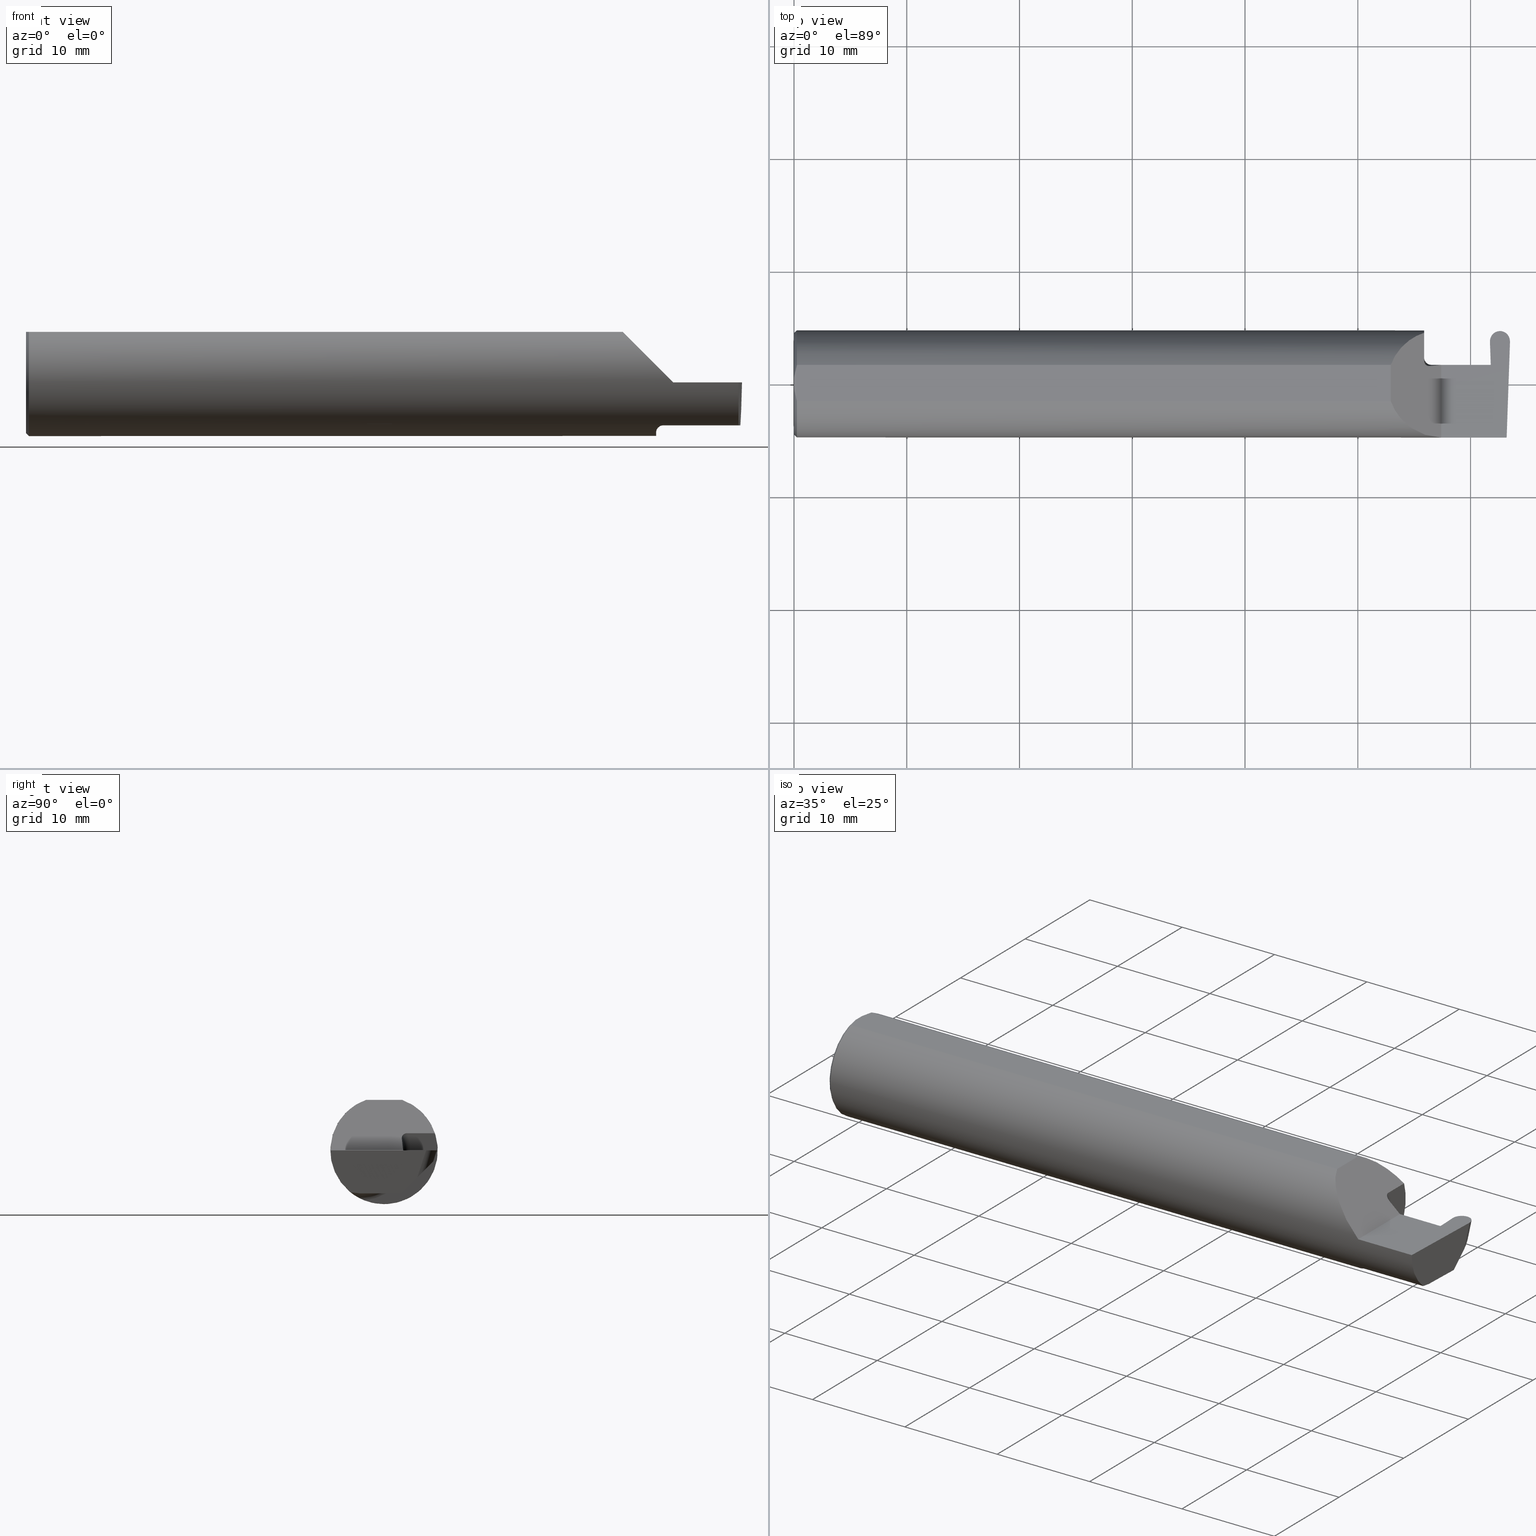
[diagram: canonical four-view strip — front | top / right | iso, engineering-drawing reading convention]
A machine part, canonical four-view strip (front | top / right | iso — engineering-drawing reading convention). The complete STEP part file that produces these views, byte-faithful:
ISO-10303-21;
HEADER;
FILE_DESCRIPTION (( 'STEP AP203' ),
    '1' );
FILE_NAME ('222170-GFR069-4.STEP',
    '2024-06-26T22:33:09',
    ( '' ),
    ( '' ),
    'SwSTEP 2.0',
    'SolidWorks 2024',
    '' );
FILE_SCHEMA (( 'CONFIG_CONTROL_DESIGN' ));
ENDSEC;

DATA;
#1 = AXIS2_PLACEMENT_3D ( 'NONE', #185, #61, #291 ) ;
#2 = CARTESIAN_POINT ( 'NONE',  ( 2.200000000000000178, 0.08104282222773613598, 0.05999999999999955369 ) ) ;
#3 = EDGE_LOOP ( 'NONE', ( #206, #472, #368, #521, #239, #60, #145, #120, #281, #515, #617 ) ) ;
#4 = EDGE_CURVE ( 'NONE', #346, #703, #574, .T. ) ;
#5 = CARTESIAN_POINT ( 'NONE',  ( 2.200000000000000178, 0.1774824568795465018, 0.05999999999999960920 ) ) ;
#6 = ORIENTED_EDGE ( 'NONE', *, *, #237, .F. ) ;
#7 = CARTESIAN_POINT ( 'NONE',  ( 2.260000000000000231, -0.2500000000000000555, 2.939152317953647352E-17 ) ) ;
#8 = ORIENTED_EDGE ( 'NONE', *, *, #298, .T. ) ;
#9 = VECTOR ( 'NONE', #580, 39.37007874015748143 ) ;
#10 = EDGE_CURVE ( 'NONE', #300, #349, #492, .T. ) ;
#11 = CC_DESIGN_APPROVAL ( #555, ( #513 ) ) ;
#12 = FACE_OUTER_BOUND ( 'NONE', #36, .T. ) ;
#13 = CARTESIAN_POINT ( 'NONE',  ( 2.432814406597916257, 0.06655862405284602989, -0.005234924505382013322 ) ) ;
#14 = ORIENTED_EDGE ( 'NONE', *, *, #322, .F. ) ;
#15 = CARTESIAN_POINT ( 'NONE',  ( 0.000000000000000000, 0.000000000000000000, 0.000000000000000000 ) ) ;
#16 = DIRECTION ( 'NONE',  ( -1.000000000000000000, -5.199944350551892858E-16, -0.000000000000000000 ) ) ;
#17 = CALENDAR_DATE ( 2024, 26, 6 ) ;
#18 = CIRCLE ( 'NONE', #522, 0.1773500000000005072 ) ;
#19 = CARTESIAN_POINT ( 'NONE',  ( 2.494284159956727809, 0.06030305154315080546, -0.1500000000000000500 ) ) ;
#20 = VECTOR ( 'NONE', #191, 39.37007874015748143 ) ;
#21 = PLANE ( 'NONE',  #363 ) ;
#22 = APPLICATION_CONTEXT ( 'configuration controlled 3d designs of mechanical parts and assemblies' ) ;
#23 = CARTESIAN_POINT ( 'NONE',  ( 2.219511795768554396, -0.1163687266324231750, -0.1468371510166791294 ) ) ;
#24 = LINE ( 'NONE', #193, #43 ) ;
#25 = PERSON_AND_ORGANIZATION ( #656, #149 ) ;
#26 = CYLINDRICAL_SURFACE ( 'NONE', #347, 0.1500000000000001055 ) ;
#27 = DIRECTION ( 'NONE',  ( 0.000000000000000000, -1.000000000000000000, 0.000000000000000000 ) ) ;
#28 = ORIENTED_EDGE ( 'NONE', *, *, #127, .F. ) ;
#29 = CARTESIAN_POINT ( 'NONE',  ( 2.432814406597916257, 0.06655862405284602989, -0.005234924505382013322 ) ) ;
#30 = ADVANCED_FACE ( 'NONE', ( #190 ), #179, .F. ) ;
#31 = DIRECTION ( 'NONE',  ( 0.000000000000000000, 0.000000000000000000, -1.000000000000000000 ) ) ;
#32 = VECTOR ( 'NONE', #312, 39.37007874015748143 ) ;
#33 = ORIENTED_EDGE ( 'NONE', *, *, #163, .F. ) ;
#34 = PLANE ( 'NONE',  #174 ) ;
#35 = CARTESIAN_POINT ( 'NONE',  ( 2.432629151099980458, 0.1162741585162867103, -0.09402889302686347206 ) ) ;
#36 = EDGE_LOOP ( 'NONE', ( #571, #546, #706 ) ) ;
#37 = CARTESIAN_POINT ( 'NONE',  ( 2.496725455933987536, 0.1069046986531339838, -0.1033983528900163373 ) ) ;
#38 = CARTESIAN_POINT ( 'NONE',  ( 2.200000000000000178, -0.08335000000000011844, 0.000000000000000000 ) ) ;
#39 = ORIENTED_EDGE ( 'NONE', *, *, #382, .T. ) ;
#40 = CARTESIAN_POINT ( 'NONE',  ( 2.200000000000000178, 0.06664999999999997315, 3.673940397442061963E-17 ) ) ;
#41 = DIRECTION ( 'NONE',  ( -0.02739170151060053848, -0.3089010440752014142, -0.9506996579664919178 ) ) ;
#42 = ORIENTED_EDGE ( 'NONE', *, *, #138, .F. ) ;
#43 = VECTOR ( 'NONE', #137, 39.37007874015748143 ) ;
#44 = EDGE_CURVE ( 'NONE', #621, #688, #457, .T. ) ;
#45 = APPROVAL_STATUS ( 'not_yet_approved' ) ;
#46 = CARTESIAN_POINT ( 'NONE',  ( 2.225000000000000089, -0.08335000000000010456, 0.000000000000000000 ) ) ;
#47 = EDGE_LOOP ( 'NONE', ( #390, #284, #155, #324, #42 ) ) ;
#48 = APPLICATION_PROTOCOL_DEFINITION ( 'international standard', 'config_control_design', 1994, #318 ) ;
#49 = CARTESIAN_POINT ( 'NONE',  ( 2.464880405396090435, 0.1481930249017474333, 0.001059347137392458284 ) ) ;
#50 = ORIENTED_EDGE ( 'NONE', *, *, #510, .F. ) ;
#51 = CALENDAR_DATE ( 2024, 26, 6 ) ;
#52 = EDGE_CURVE ( 'NONE', #688, #123, #177, .T. ) ;
#53 = CARTESIAN_POINT ( 'NONE',  ( 2.463396416271047329, 0.1305034395874042075, -0.05338359836401863900 ) ) ;
#54 = EDGE_LOOP ( 'NONE', ( #447, #691, #657, #39, #354 ) ) ;
#55 = CIRCLE ( 'NONE', #464, 0.1873499999999999888 ) ;
#56 = AXIS2_PLACEMENT_3D ( 'NONE', #537, #264, #482 ) ;
#57 = PERSON_AND_ORGANIZATION ( #656, #149 ) ;
#58 = DIRECTION ( 'NONE',  ( 0.000000000000000000, 1.000000000000000000, 0.000000000000000000 ) ) ;
#59 = ADVANCED_FACE ( 'NONE', ( #463 ), #578, .F. ) ;
#60 = ORIENTED_EDGE ( 'NONE', *, *, #163, .T. ) ;
#61 = DIRECTION ( 'NONE',  ( -1.000000000000000000, -5.199944350551892858E-16, -0.000000000000000000 ) ) ;
#62 = DIRECTION ( 'NONE',  ( 1.000000000000000000, 5.199944350551892858E-16, 0.000000000000000000 ) ) ;
#63 = ADVANCED_FACE ( 'NONE', ( #12 ), #403, .T. ) ;
#64 = PLANE ( 'NONE',  #222 ) ;
#65 = CARTESIAN_POINT ( 'NONE',  ( 2.200000000000000178, -0.2500000000000001110, 0.05999999999999938716 ) ) ;
#66 = PRODUCT ( '222170-GFR069-4', '222170-GFR069-4', '', ( #98 ) ) ;
#67 = EDGE_CURVE ( 'NONE', #366, #142, #518, .T. ) ;
#68 = CIRCLE ( 'NONE', #345, 0.1750000000000001277 ) ;
#69 = FACE_OUTER_BOUND ( 'NONE', #262, .T. ) ;
#70 = EDGE_LOOP ( 'NONE', ( #288, #28, #459, #215 ) ) ;
#71 = CARTESIAN_POINT ( 'NONE',  ( 0.005151108632379595466, -0.04888864921576189376, 0.1763499999999999235 ) ) ;
#72 = DIRECTION ( 'NONE',  ( -1.224646799147353947E-16, 0.000000000000000000, -1.000000000000000000 ) ) ;
#73 = PERSON_AND_ORGANIZATION_ROLE ( 'classification_officer' ) ;
#74 = LINE ( 'NONE', #508, #124 ) ;
#75 = VERTEX_POINT ( 'NONE', #672 ) ;
#76 = CARTESIAN_POINT ( 'NONE',  ( 2.248197494504676097, 0.06665000000000001479, 0.01180250549532442170 ) ) ;
#77 = CC_DESIGN_SECURITY_CLASSIFICATION ( #595, ( #513 ) ) ;
#78 = EDGE_CURVE ( 'NONE', #600, #218, #568, .T. ) ;
#79 = DATE_AND_TIME ( #413, #400 ) ;
#80 = CARTESIAN_POINT ( 'NONE',  ( 2.208439486659306006, -0.1064616213911155906, -0.1542305641651501857 ) ) ;
#81 = CARTESIAN_POINT ( 'NONE',  ( 2.499978631868781331, 0.1483485405823076198, 0.000000000000000000 ) ) ;
#82 = ORIENTED_EDGE ( 'NONE', *, *, #175, .T. ) ;
#83 =( BOUNDED_CURVE ( )  B_SPLINE_CURVE ( 3, ( #446, #556, #653, #5 ),
 .UNSPECIFIED., .F., .F. ) 
 B_SPLINE_CURVE_WITH_KNOTS ( ( 4, 4 ),
 ( 0.3443758272561143752, 1.244796402594305018 ),
 .UNSPECIFIED. ) 
 CURVE ( )  GEOMETRIC_REPRESENTATION_ITEM ( )  RATIONAL_B_SPLINE_CURVE ( ( 1.000000000000000000, 0.9335704097038357574, 0.9335704097038357574, 1.000000000000000000 ) ) 
 REPRESENTATION_ITEM ( '' )  );
#84 = CARTESIAN_POINT ( 'NONE',  ( 2.499925463505881851, 0.1468259978756916162, 0.000000000000000000 ) ) ;
#85 = CARTESIAN_POINT ( 'NONE',  ( 0.000000000000000000, 0.01880691362239451242, 0.1763499999999999235 ) ) ;
#86 = ORIENTED_EDGE ( 'NONE', *, *, #255, .T. ) ;
#87 = CC_DESIGN_PERSON_AND_ORGANIZATION_ASSIGNMENT ( #250, #245, ( #220 ) ) ;
#88 = CARTESIAN_POINT ( 'NONE',  ( 2.200000000000000178, -0.06851976604679038685, -0.1743704796142199753 ) ) ;
#89 = DIRECTION ( 'NONE',  ( 1.000000000000000000, 0.000000000000000000, 0.000000000000000000 ) ) ;
#90 = AXIS2_PLACEMENT_3D ( 'NONE', #15, #614, #125 ) ;
#91 = CONICAL_SURFACE ( 'NONE', #477, 0.1773500000000005072, 0.7853981633974551624 ) ;
#92 = VERTEX_POINT ( 'NONE', #186 ) ;
#93 = CARTESIAN_POINT ( 'NONE',  ( 2.222174967710398796, -0.1172600179964003730, -0.1461167706989305870 ) ) ;
#94 = DIRECTION ( 'NONE',  ( 0.01806679408117481400, 0.000000000000000000, -0.9998367821557817559 ) ) ;
#95 = ORIENTED_EDGE ( 'NONE', *, *, #517, .T. ) ;
#96 = CARTESIAN_POINT ( 'NONE',  ( 2.465246133078789814, 0.1846500000000000363, 0.000000000000000000 ) ) ;
#97 = ADVANCED_FACE ( 'NONE', ( #128 ), #21, .F. ) ;
#98 = MECHANICAL_CONTEXT ( 'NONE', #318, 'mechanical' ) ;
#99 = CARTESIAN_POINT ( 'NONE',  ( 2.733184360054362827, -0.08334999999999888332, -0.1500000000000000500 ) ) ;
#100 = EDGE_LOOP ( 'NONE', ( #14, #158, #139, #602 ) ) ;
#101 = VECTOR ( 'NONE', #625, 39.37007874015748143 ) ;
#102 = CC_DESIGN_PERSON_AND_ORGANIZATION_ASSIGNMENT ( #57, #115, ( #513 ) ) ;
#103 = CARTESIAN_POINT ( 'NONE',  ( 0.000000000000000000, 0.000000000000000000, 0.000000000000000000 ) ) ;
#104 = LINE ( 'NONE', #214, #570 ) ;
#105 = ORIENTED_EDGE ( 'NONE', *, *, #78, .T. ) ;
#106 = EDGE_CURVE ( 'NONE', #427, #613, #436, .T. ) ;
#107 = APPROVAL_ROLE ( '' ) ;
#108 = DIRECTION ( 'NONE',  ( 0.000000000000000000, 0.000000000000000000, 1.000000000000000000 ) ) ;
#109 = ORIENTED_EDGE ( 'NONE', *, *, #183, .F. ) ;
#110 = CARTESIAN_POINT ( 'NONE',  ( 2.488151344270815191, -0.1172600179964003869, -0.1461167706989304760 ) ) ;
#111 = ORIENTED_EDGE ( 'NONE', *, *, #414, .F. ) ;
#112 =( BOUNDED_CURVE ( )  B_SPLINE_CURVE ( 3, ( #619, #248, #514, #358 ),
 .UNSPECIFIED., .F., .F. ) 
 B_SPLINE_CURVE_WITH_KNOTS ( ( 4, 4 ),
 ( 4.712388980384688786, 5.938809479923471635 ),
 .UNSPECIFIED. ) 
 CURVE ( )  GEOMETRIC_REPRESENTATION_ITEM ( )  RATIONAL_B_SPLINE_CURVE ( ( 1.000000000000000000, 0.8785364999009659392, 0.8785364999009659392, 1.000000000000000000 ) ) 
 REPRESENTATION_ITEM ( '' )  );
#113 = AXIS2_PLACEMENT_3D ( 'NONE', #458, #612, #665 ) ;
#114 = AXIS2_PLACEMENT_3D ( 'NONE', #208, #216, #384 ) ;
#115 = PERSON_AND_ORGANIZATION_ROLE ( 'design_supplier' ) ;
#116 = CARTESIAN_POINT ( 'NONE',  ( 2.444348312931303724, 0.1715825785496946920, -0.03872047299345484500 ) ) ;
#117 = VERTEX_POINT ( 'NONE', #202 ) ;
#118 = CALENDAR_DATE ( 2024, 26, 6 ) ;
#119 = FACE_OUTER_BOUND ( 'NONE', #314, .T. ) ;
#120 = ORIENTED_EDGE ( 'NONE', *, *, #265, .F. ) ;
#121 = ADVANCED_FACE ( 'NONE', ( #471 ), #683, .F. ) ;
#122 = FACE_OUTER_BOUND ( 'NONE', #70, .T. ) ;
#123 = VERTEX_POINT ( 'NONE', #35 ) ;
#124 = VECTOR ( 'NONE', #659, 39.37007874015748143 ) ;
#125 = DIRECTION ( 'NONE',  ( 0.000000000000000000, 0.000000000000000000, -1.000000000000000000 ) ) ;
#126 = CARTESIAN_POINT ( 'NONE',  ( -3.937007874019685528E-05, 0.1723030515431495657, -0.03799999999999999906 ) ) ;
#127 = EDGE_CURVE ( 'NONE', #703, #503, #68, .T. ) ;
#128 = FACE_OUTER_BOUND ( 'NONE', #681, .T. ) ;
#129 = EDGE_CURVE ( 'NONE', #600, #92, #686, .T. ) ;
#130 = CARTESIAN_POINT ( 'NONE',  ( 2.225000000000000089, 0.06250952145814828165, 0.03500000000000007966 ) ) ;
#131 = CARTESIAN_POINT ( 'NONE',  ( 2.426364553045988082, 0.2358584246263381590, 0.02555537308318932624 ) ) ;
#132 = CC_DESIGN_PERSON_AND_ORGANIZATION_ASSIGNMENT ( #563, #73, ( #595 ) ) ;
#133 = CALENDAR_DATE ( 2024, 26, 6 ) ;
#134 =( BOUNDED_CURVE ( )  B_SPLINE_CURVE ( 3, ( #610, #396, #176, #13 ),
 .UNSPECIFIED., .F., .F. ) 
 B_SPLINE_CURVE_WITH_KNOTS ( ( 4, 4 ),
 ( 3.159045946109707792, 4.694935687864667528 ),
 .UNSPECIFIED. ) 
 CURVE ( )  GEOMETRIC_REPRESENTATION_ITEM ( )  RATIONAL_B_SPLINE_CURVE ( ( 1.000000000000000000, 0.8128932002257790446, 0.8128932002257790446, 1.000000000000000000 ) ) 
 REPRESENTATION_ITEM ( '' )  );
#135 = CIRCLE ( 'NONE', #195, 0.1873499999999999888 ) ;
#136 = LINE ( 'NONE', #309, #32 ) ;
#137 = DIRECTION ( 'NONE',  ( 1.000000000000000000, -0.000000000000000000, -0.000000000000000000 ) ) ;
#138 = EDGE_CURVE ( 'NONE', #334, #123, #485, .T. ) ;
#139 = ORIENTED_EDGE ( 'NONE', *, *, #192, .T. ) ;
#140 = CARTESIAN_POINT ( 'NONE',  ( 2.733184360054362827, -0.08334999999999888332, -0.1500000000000000500 ) ) ;
#141 = CARTESIAN_POINT ( 'NONE',  ( 0.000000000000000000, 0.000000000000000000, -0.1773500000000005072 ) ) ;
#142 = VERTEX_POINT ( 'NONE', #326 ) ;
#143 = CARTESIAN_POINT ( 'NONE',  ( 0.000000000000000000, 0.000000000000000000, 0.000000000000000000 ) ) ;
#144 = CARTESIAN_POINT ( 'NONE',  ( 2.485497127068696521, 0.1715825785496953304, -0.03872047299345427601 ) ) ;
#145 = ORIENTED_EDGE ( 'NONE', *, *, #465, .T. ) ;
#146 = LINE ( 'NONE', #37, #101 ) ;
#147 = CLOSED_SHELL ( 'NONE', ( #666, #230, #646, #408, #30, #455, #496, #550, #438, #63, #603, #343, #395, #59, #426, #97, #121, #270, #289 ) ) ;
#148 = CARTESIAN_POINT ( 'NONE',  ( 2.435723926987983567, -2.372237094640325061, -0.1236817301709687428 ) ) ;
#149 = ORGANIZATION ( 'UNSPECIFIED', 'UNSPECIFIED', '' ) ;
#150 = APPROVAL_PERSON_ORGANIZATION ( #519, #340, #451 ) ;
#151 = ORIENTED_EDGE ( 'NONE', *, *, #361, .F. ) ;
#152 = CARTESIAN_POINT ( 'NONE',  ( 2.429150766615653101, 0.1688532867831435691, 8.647869142229363777E-18 ) ) ;
#153 = EDGE_CURVE ( 'NONE', #660, #92, #680, .T. ) ;
#154 = CARTESIAN_POINT ( 'NONE',  ( 2.488255780514392335, -0.1873499999999999888, 0.000000000000000000 ) ) ;
#155 = ORIENTED_EDGE ( 'NONE', *, *, #10, .T. ) ;
#156 = CARTESIAN_POINT ( 'NONE',  ( 2.200000000000000178, 0.08104282222773613598, 0.05999999999999955369 ) ) ;
#157 = DIRECTION ( 'NONE',  ( 1.000000000000000000, -0.000000000000000000, -0.000000000000000000 ) ) ;
#158 = ORIENTED_EDGE ( 'NONE', *, *, #175, .F. ) ;
#159 = DIRECTION ( 'NONE',  ( 1.000000000000000000, 0.000000000000000000, 0.000000000000000000 ) ) ;
#160 = CYLINDRICAL_SURFACE ( 'NONE', #385, 0.03500000000000001027 ) ;
#161 = VERTEX_POINT ( 'NONE', #268 ) ;
#162 = VECTOR ( 'NONE', #705, 39.37007874015748143 ) ;
#163 = EDGE_CURVE ( 'NONE', #380, #383, #135, .T. ) ;
#164 = CC_DESIGN_APPROVAL ( #576, ( #220 ) ) ;
#165 = CARTESIAN_POINT ( 'NONE',  ( 2.423568674585635296, 0.06661954135095464469, -0.001744974835128845683 ) ) ;
#166 = VERTEX_POINT ( 'NONE', #141 ) ;
#167 =( BOUNDED_CURVE ( )  B_SPLINE_CURVE ( 3, ( #110, #287, #344, #154 ),
 .UNSPECIFIED., .F., .F. ) 
 B_SPLINE_CURVE_WITH_KNOTS ( ( 4, 4 ),
 ( 5.852427379562160858, 6.746954780470609592 ),
 .UNSPECIFIED. ) 
 CURVE ( )  GEOMETRIC_REPRESENTATION_ITEM ( )  RATIONAL_B_SPLINE_CURVE ( ( 1.000000000000000000, 0.9344226172588800949, 0.9344226172588800949, 1.000000000000000000 ) ) 
 REPRESENTATION_ITEM ( '' )  );
#168 = CARTESIAN_POINT ( 'NONE',  ( 2.462750075430569119, 0.2055041093358005722, 0.06418234898524585730 ) ) ;
#169 = LINE ( 'NONE', #647, #233 ) ;
#170 = VERTEX_POINT ( 'NONE', #199 ) ;
#171 = CARTESIAN_POINT ( 'NONE',  ( 2.260000000000000231, -0.1873499999999999888, 2.939152317953647352E-17 ) ) ;
#172 = VERTEX_POINT ( 'NONE', #693 ) ;
#173 = AXIS2_PLACEMENT_3D ( 'NONE', #238, #72, #461 ) ;
#174 = AXIS2_PLACEMENT_3D ( 'NONE', #579, #316, #636 ) ;
#175 = EDGE_CURVE ( 'NONE', #534, #166, #488, .T. ) ;
#176 = CARTESIAN_POINT ( 'NONE',  ( 2.434358557599728634, 0.06357628547474605818, -0.09063792740366180545 ) ) ;
#177 = LINE ( 'NONE', #131, #375 ) ;
#178 = CARTESIAN_POINT ( 'NONE',  ( 2.497216288900020675, 0.1162741585162865438, -0.09402889302686366635 ) ) ;
#179 = PLANE ( 'NONE',  #173 ) ;
#180 = DESIGN_CONTEXT ( 'detailed design', #22, 'design' ) ;
#181 = DIRECTION ( 'NONE',  ( 0.000000000000000000, -0.9510565162951533091, 0.3090169943749482284 ) ) ;
#182 = DIRECTION ( 'NONE',  ( -0.03701744261649710793, 0.7066221440565398915, 0.7066221440565479961 ) ) ;
#183 = EDGE_CURVE ( 'NONE', #349, #378, #369, .T. ) ;
#184 =( GEOMETRIC_REPRESENTATION_CONTEXT ( 3 ) GLOBAL_UNCERTAINTY_ASSIGNED_CONTEXT ( ( #404 ) ) GLOBAL_UNIT_ASSIGNED_CONTEXT ( ( #441, #388, #604 ) ) REPRESENTATION_CONTEXT ( 'NONE', 'WORKASPACE' ) );
#185 = CARTESIAN_POINT ( 'NONE',  ( 2.225000000000000089, -0.08335000000000010456, 0.000000000000000000 ) ) ;
#186 = CARTESIAN_POINT ( 'NONE',  ( 2.432719784034706123, 0.06664999999999998703, 0.000000000000000000 ) ) ;
#187 = EDGE_CURVE ( 'NONE', #92, #334, #261, .T. ) ;
#188 = B_SPLINE_CURVE_WITH_KNOTS ( 'NONE', 3,
 ( #484, #328, #165, #491 ),
 .UNSPECIFIED., .F., .F.,
 ( 4, 4 ),
 ( 0.000000000000000000, 1.000000000000000000 ),
 .UNSPECIFIED. ) ;
#189 = CARTESIAN_POINT ( 'NONE',  ( 2.200000000000000178, -0.06851976604679038685, -0.1743704796142199753 ) ) ;
#190 = FACE_OUTER_BOUND ( 'NONE', #694, .T. ) ;
#191 = DIRECTION ( 'NONE',  ( -0.000000000000000000, 1.000000000000000000, -0.000000000000000000 ) ) ;
#192 = EDGE_CURVE ( 'NONE', #534, #161, #274, .T. ) ;
#193 = CARTESIAN_POINT ( 'NONE',  ( -3.937007874019685528E-05, 0.1846500000000000363, 0.000000000000000000 ) ) ;
#194 = ORIENTED_EDGE ( 'NONE', *, *, #10, .F. ) ;
#195 = AXIS2_PLACEMENT_3D ( 'NONE', #429, #89, #597 ) ;
#196 = LINE ( 'NONE', #140, #642 ) ;
#197 = LOCAL_TIME ( 15, 33, 9.000000000000000000, #290 ) ;
#198 = EDGE_CURVE ( 'NONE', #562, #244, #24, .T. ) ;
#199 = CARTESIAN_POINT ( 'NONE',  ( 2.488255780514392335, -0.1873499999999999888, 0.000000000000000000 ) ) ;
#200 = ORIENTED_EDGE ( 'NONE', *, *, #687, .F. ) ;
#201 = CARTESIAN_POINT ( 'NONE',  ( 2.225000000000000089, 0.06250952145814828165, 0.03500000000000007966 ) ) ;
#202 = CARTESIAN_POINT ( 'NONE',  ( 0.000000000000000000, -0.01880691362239451242, 0.1763499999999999235 ) ) ;
#203 = VERTEX_POINT ( 'NONE', #365 ) ;
#204 = DIRECTION ( 'NONE',  ( -1.000000000000000000, -5.199944350551892858E-16, -0.000000000000000000 ) ) ;
#205 = DIRECTION ( 'NONE',  ( -1.000000000000000000, -0.000000000000000000, -0.000000000000000000 ) ) ;
#206 = ORIENTED_EDGE ( 'NONE', *, *, #67, .F. ) ;
#207 = EDGE_CURVE ( 'NONE', #366, #613, #702, .T. ) ;
#208 = CARTESIAN_POINT ( 'NONE',  ( 0.000000000000000000, 0.000000000000000000, 0.000000000000000000 ) ) ;
#209 = TOROIDAL_SURFACE ( 'NONE', #1, 0.1750000000000001277, 0.02499999999999993894 ) ;
#210 = CARTESIAN_POINT ( 'NONE',  ( 2.464922720000000123, 0.1722898021506072963, -0.03801324939254228930 ) ) ;
#211 = LOCAL_TIME ( 15, 33, 9.000000000000000000, #421 ) ;
#212 = ORIENTED_EDGE ( 'NONE', *, *, #311, .T. ) ;
#213 = CARTESIAN_POINT ( 'NONE',  ( 2.464599306921210875, 0.1846500000000000363, 0.000000000000000000 ) ) ;
#214 = CARTESIAN_POINT ( 'NONE',  ( 2.463396416271046885, 0.1637904176577345827, -0.06419919316714181590 ) ) ;
#215 = ORIENTED_EDGE ( 'NONE', *, *, #275, .T. ) ;
#216 = DIRECTION ( 'NONE',  ( 1.000000000000000000, 0.000000000000000000, 0.000000000000000000 ) ) ;
#217 = CARTESIAN_POINT ( 'NONE',  ( 2.214233757172356043, 0.06188798250606978441, 0.04576624282764355650 ) ) ;
#218 = VERTEX_POINT ( 'NONE', #588 ) ;
#219 = LINE ( 'NONE', #40, #466 ) ;
#220 = PRODUCT_DEFINITION ( 'UNKNOWN', '', #513, #180 ) ;
#221 = ORIENTED_EDGE ( 'NONE', *, *, #192, .F. ) ;
#222 = AXIS2_PLACEMENT_3D ( 'NONE', #294, #181, #511 ) ;
#223 = AXIS2_PLACEMENT_3D ( 'NONE', #267, #607, #543 ) ;
#224 = CARTESIAN_POINT ( 'NONE',  ( 2.429919976494118838, 0.1468259978756916995, 0.000000000000000000 ) ) ;
#225 = CYLINDRICAL_SURFACE ( 'NONE', #651, 0.03500000000000001027 ) ;
#226 = ORIENTED_EDGE ( 'NONE', *, *, #78, .F. ) ;
#227 = APPROVAL_STATUS ( 'not_yet_approved' ) ;
#228 = PLANE ( 'NONE',  #355 ) ;
#229 = ORIENTED_EDGE ( 'NONE', *, *, #448, .F. ) ;
#230 = ADVANCED_FACE ( 'NONE', ( #372 ), #323, .F. ) ;
#231 = CARTESIAN_POINT ( 'NONE',  ( 2.260000000000000231, 0.06664999999999991764, 2.939152317953647352E-17 ) ) ;
#232 = CARTESIAN_POINT ( 'NONE',  ( 2.464922720000000567, 0.1781008794198390144, -0.02015612059253711272 ) ) ;
#233 = VECTOR ( 'NONE', #157, 39.37007874015748143 ) ;
#234 = CARTESIAN_POINT ( 'NONE',  ( 2.464922720000000123, 0.1722898021506072963, -0.03801324939254228930 ) ) ;
#235 = CARTESIAN_POINT ( 'NONE',  ( 2.199999999999998845, 0.06655862405286090688, -0.005234924505474066424 ) ) ;
#236 = DIRECTION ( 'NONE',  ( 1.000000000000000000, 0.000000000000000000, 0.000000000000000000 ) ) ;
#237 = EDGE_CURVE ( 'NONE', #366, #170, #167, .T. ) ;
#238 = CARTESIAN_POINT ( 'NONE',  ( 2.500000000000000000, -0.2500000000000000555, 0.000000000000000000 ) ) ;
#239 = ORIENTED_EDGE ( 'NONE', *, *, #572, .F. ) ;
#240 =( BOUNDED_CURVE ( )  B_SPLINE_CURVE ( 3, ( #567, #406, #116, #234 ),
 .UNSPECIFIED., .F., .T. ) 
 B_SPLINE_CURVE_WITH_KNOTS ( ( 4, 4 ),
 ( 1.556955361882043976, 3.133500545086777223 ),
 .UNSPECIFIED. ) 
 CURVE ( )  GEOMETRIC_REPRESENTATION_ITEM ( )  RATIONAL_B_SPLINE_CURVE ( ( 1.000000000000000000, 0.8033808900895277327, 0.8033808900895277327, 1.000000000000000000 ) ) 
 REPRESENTATION_ITEM ( '' )  );
#241 = FACE_OUTER_BOUND ( 'NONE', #54, .T. ) ;
#242 = B_SPLINE_CURVE_WITH_KNOTS ( 'NONE', 3,
 ( #685, #93, #23, #428, #424, #80, #628, #467, #251, #371, #682, #88 ),
 .UNSPECIFIED., .F., .F.,
 ( 4, 2, 2, 2, 2, 4 ),
 ( 1.967976973658592312E-07, 0.0002120314145722271369, 0.0004238660314470883792, 0.0008475352651968000219, 0.001271204498946511665, 0.001694873732696223307 ),
 .UNSPECIFIED. ) ;
#243 = ORIENTED_EDGE ( 'NONE', *, *, #198, .F. ) ;
#244 = VERTEX_POINT ( 'NONE', #96 ) ;
#245 = PERSON_AND_ORGANIZATION_ROLE ( 'creator' ) ;
#246 = AXIS2_PLACEMENT_3D ( 'NONE', #148, #425, #94 ) ;
#247 = CC_DESIGN_APPROVAL ( #340, ( #595 ) ) ;
#248 = CARTESIAN_POINT ( 'NONE',  ( 2.178182770154592163, -0.1873500000000000443, 0.08181722984540684696 ) ) ;
#249 = ORIENTED_EDGE ( 'NONE', *, *, #106, .F. ) ;
#250 = PERSON_AND_ORGANIZATION ( #656, #149 ) ;
#251 = CARTESIAN_POINT ( 'NONE',  ( 2.201843912362377420, -0.08846956905169059415, -0.1652353808078973196 ) ) ;
#252 = CARTESIAN_POINT ( 'NONE',  ( 0.005155213631852355663, 0.04890080824240217866, 0.1763499999999999235 ) ) ;
#253 = ORIENTED_EDGE ( 'NONE', *, *, #566, .F. ) ;
#254 = PERSON_AND_ORGANIZATION_ROLE ( 'creator' ) ;
#255 = EDGE_CURVE ( 'NONE', #172, #486, #379, .T. ) ;
#256 = LINE ( 'NONE', #432, #673 ) ;
#257 = CARTESIAN_POINT ( 'NONE',  ( 2.429907053872649048, 0.1469717285548437224, 0.0004485129120875325399 ) ) ;
#258 = ORIENTED_EDGE ( 'NONE', *, *, #547, .T. ) ;
#259 = VECTOR ( 'NONE', #58, 39.37007874015748143 ) ;
#260 = DIRECTION ( 'NONE',  ( 0.000000000000000000, -1.000000000000000000, 0.000000000000000000 ) ) ;
#261 = LINE ( 'NONE', #419, #422 ) ;
#262 = EDGE_LOOP ( 'NONE', ( #553, #82, #632 ) ) ;
#263 = CARTESIAN_POINT ( 'NONE',  ( 2.500694673384347144, 0.1688532867831435136, 4.157668328071865437E-18 ) ) ;
#264 = DIRECTION ( 'NONE',  ( 7.486943585141933705E-15, -0.9998476951563912696, 0.01745240643728358451 ) ) ;
#265 = EDGE_CURVE ( 'NONE', #486, #161, #333, .T. ) ;
#266 = ORIENTED_EDGE ( 'NONE', *, *, #700, .F. ) ;
#267 = CARTESIAN_POINT ( 'NONE',  ( 0.000000000000000000, 0.000000000000000000, 0.000000000000000000 ) ) ;
#268 = CARTESIAN_POINT ( 'NONE',  ( 0.009999999999999346217, 0.06325108694718235836, 0.1763499999999999235 ) ) ;
#269 = EDGE_LOOP ( 'NONE', ( #557, #648, #258, #586, #200, #226, #151, #420, #476 ) ) ;
#270 = ADVANCED_FACE ( 'NONE', ( #329 ), #225, .T. ) ;
#271 = DIRECTION ( 'NONE',  ( 1.000000000000000000, 5.199944350551892858E-16, 0.000000000000000000 ) ) ;
#272 = DIRECTION ( 'NONE',  ( 0.000000000000000000, -1.000000000000000000, 0.000000000000000000 ) ) ;
#273 = ORIENTED_EDGE ( 'NONE', *, *, #311, .F. ) ;
#274 = B_SPLINE_CURVE_WITH_KNOTS ( 'NONE', 3,
 ( #85, #592, #252, #637 ),
 .UNSPECIFIED., .F., .F.,
 ( 4, 4 ),
 ( 0.01188664626022267051, 0.01304646959483758001 ),
 .UNSPECIFIED. ) ;
#275 = EDGE_CURVE ( 'NONE', #507, #142, #374, .T. ) ;
#276 = DIRECTION ( 'NONE',  ( 0.000000000000000000, 0.000000000000000000, 1.000000000000000000 ) ) ;
#277 = CARTESIAN_POINT ( 'NONE',  ( 2.200842198961673102, 0.07338839382613028539, 0.05915780103832714992 ) ) ;
#278 = ORIENTED_EDGE ( 'NONE', *, *, #618, .T. ) ;
#279 = PERSON_AND_ORGANIZATION ( #656, #149 ) ;
#280 = LINE ( 'NONE', #439, #320 ) ;
#281 = ORIENTED_EDGE ( 'NONE', *, *, #335, .T. ) ;
#282 = CARTESIAN_POINT ( 'NONE',  ( 2.423599133234680458, 0.06664999999999991764, 0.000000000000000000 ) ) ;
#283 = CARTESIAN_POINT ( 'NONE',  ( 2.200000000000000178, 0.1774824568795465018, 0.05999999999999960920 ) ) ;
#284 = ORIENTED_EDGE ( 'NONE', *, *, #658, .F. ) ;
#285 = VECTOR ( 'NONE', #569, 39.37007874015748143 ) ;
#286 = CONICAL_SURFACE ( 'NONE', #114, 0.1773500000000005072, 0.7853981633974551624 ) ;
#287 = CARTESIAN_POINT ( 'NONE',  ( 2.487208827712859893, -0.1623470442677540371, -0.1099340280425340211 ) ) ;
#288 = ORIENTED_EDGE ( 'NONE', *, *, #523, .T. ) ;
#289 = ADVANCED_FACE ( 'NONE', ( #605 ), #160, .T. ) ;
#290 = COORDINATED_UNIVERSAL_TIME_OFFSET ( 8, 0, .BEHIND. ) ;
#291 = DIRECTION ( 'NONE',  ( 5.199944350551892858E-16, -1.000000000000000000, 0.000000000000000000 ) ) ;
#292 = ORIENTED_EDGE ( 'NONE', *, *, #370, .F. ) ;
#293 = EDGE_CURVE ( 'NONE', #703, #507, #505, .T. ) ;
#294 = CARTESIAN_POINT ( 'NONE',  ( -3.937007874019685528E-05, 0.1846500000000000363, 0.000000000000000000 ) ) ;
#295 = DIRECTION ( 'NONE',  ( 5.199944350551892858E-16, -1.000000000000000000, -5.199944350551842568E-16 ) ) ;
#296 = PRODUCT_DEFINITION_SHAPE ( 'NONE', 'NONE',  #220 ) ;
#297 = AXIS2_PLACEMENT_3D ( 'NONE', #46, #386, #272 ) ;
#298 = EDGE_CURVE ( 'NONE', #244, #300, #104, .T. ) ;
#299 = CARTESIAN_POINT ( 'NONE',  ( 0.009999999999999346217, 0.000000000000000000, 0.000000000000000000 ) ) ;
#300 = VERTEX_POINT ( 'NONE', #561 ) ;
#301 = CARTESIAN_POINT ( 'NONE',  ( 0.009999999999999346217, -0.06325108694718235836, 0.1763499999999999235 ) ) ;
#302 = DIRECTION ( 'NONE',  ( 0.000000000000000000, -0.7071067811865434649, -0.7071067811865516806 ) ) ;
#303 = APPROVAL_STATUS ( 'not_yet_approved' ) ;
#304 = PLANE ( 'NONE',  #620 ) ;
#305 = EDGE_LOOP ( 'NONE', ( #95, #212, #549, #635 ) ) ;
#306 = DATE_AND_TIME ( #118, #524 ) ;
#307 = AXIS2_PLACEMENT_3D ( 'NONE', #615, #62, #623 ) ;
#308 = AXIS2_PLACEMENT_3D ( 'NONE', #103, #276, #159 ) ;
#309 = CARTESIAN_POINT ( 'NONE',  ( 0.000000000000000000, -0.06325108694718235836, 0.1763499999999999235 ) ) ;
#310 = CARTESIAN_POINT ( 'NONE',  ( 2.432719784034706123, 0.06664999999999998703, 0.000000000000000000 ) ) ;
#311 = EDGE_CURVE ( 'NONE', #203, #621, #280, .T. ) ;
#312 = DIRECTION ( 'NONE',  ( 1.000000000000000000, 0.000000000000000000, 0.000000000000000000 ) ) ;
#313 = DIRECTION ( 'NONE',  ( -0.9992386149554828290, 0.03489418134010802836, 0.01745240643728358798 ) ) ;
#314 = EDGE_LOOP ( 'NONE', ( #606, #483, #437, #509, #575, #111, #684 ) ) ;
#315 = DIMENSIONAL_EXPONENTS ( 1.000000000000000000, 0.000000000000000000, 0.000000000000000000, 0.000000000000000000, 0.000000000000000000, 0.000000000000000000, 0.000000000000000000 ) ;
#316 = DIRECTION ( 'NONE',  ( 0.000000000000000000, 0.000000000000000000, 1.000000000000000000 ) ) ;
#317 =( BOUNDED_CURVE ( )  B_SPLINE_CURVE ( 3, ( #84, #263, #591, #360 ),
 .UNSPECIFIED., .F., .F. ) 
 B_SPLINE_CURVE_WITH_KNOTS ( ( 4, 4 ),
 ( 1.627103621474502271, 3.225696776093226248 ),
 .UNSPECIFIED. ) 
 CURVE ( )  GEOMETRIC_REPRESENTATION_ITEM ( )  RATIONAL_B_SPLINE_CURVE ( ( 1.000000000000000000, 0.7981407609938082626, 0.7981407609938082626, 1.000000000000000000 ) ) 
 REPRESENTATION_ITEM ( '' )  );
#318 = APPLICATION_CONTEXT ( 'configuration controlled 3d designs of mechanical parts and assemblies' ) ;
#319 = ORIENTED_EDGE ( 'NONE', *, *, #44, .F. ) ;
#320 = VECTOR ( 'NONE', #452, 39.37007874015748854 ) ;
#321 = CARTESIAN_POINT ( 'NONE',  ( 2.499938386127352086, 0.1469717285548436392, 0.0004485129120875737938 ) ) ;
#322 = EDGE_CURVE ( 'NONE', #166, #383, #506, .T. ) ;
#323 = PLANE ( 'NONE',  #56 ) ;
#324 = ORIENTED_EDGE ( 'NONE', *, *, #391, .F. ) ;
#325 = DIRECTION ( 'NONE',  ( 1.000000000000000000, 0.000000000000000000, 0.000000000000000000 ) ) ;
#326 = CARTESIAN_POINT ( 'NONE',  ( 2.225000000000000089, -0.1172600179964003730, -0.1461167706989306148 ) ) ;
#327 = EDGE_LOOP ( 'NONE', ( #399, #531, #319, #273 ) ) ;
#328 = CARTESIAN_POINT ( 'NONE',  ( 2.423538215936590134, 0.06658908270190935785, -0.003489949670257691365 ) ) ;
#329 = FACE_OUTER_BOUND ( 'NONE', #611, .T. ) ;
#330 = ORIENTED_EDGE ( 'NONE', *, *, #431, .F. ) ;
#331 = EDGE_CURVE ( 'NONE', #621, #427, #169, .T. ) ;
#332 = VECTOR ( 'NONE', #412, 39.37007874015748854 ) ;
#333 = LINE ( 'NONE', #548, #434 ) ;
#334 = VERTEX_POINT ( 'NONE', #601 ) ;
#335 = EDGE_CURVE ( 'NONE', #486, #346, #83, .T. ) ;
#336 = CYLINDRICAL_SURFACE ( 'NONE', #223, 0.1873499999999999888 ) ;
#337 = DIRECTION ( 'NONE',  ( -0.02739170151060053848, -0.3089010440752014142, -0.9506996579664918068 ) ) ;
#338 = ORIENTED_EDGE ( 'NONE', *, *, #448, .T. ) ;
#339 = COORDINATED_UNIVERSAL_TIME_OFFSET ( 8, 0, .BEHIND. ) ;
#340 = APPROVAL ( #303, 'UNSPECIFIED' ) ;
#341 = DIRECTION ( 'NONE',  ( 1.000000000000000000, 0.000000000000000000, -0.000000000000000000 ) ) ;
#342 = ORIENTED_EDGE ( 'NONE', *, *, #183, .T. ) ;
#343 = ADVANCED_FACE ( 'NONE', ( #608 ), #228, .F. ) ;
#344 = CARTESIAN_POINT ( 'NONE',  ( 2.487246082891137355, -0.1873499999999999610, -0.05781030015605127109 ) ) ;
#345 = AXIS2_PLACEMENT_3D ( 'NONE', #38, #533, #27 ) ;
#346 = VERTEX_POINT ( 'NONE', #283 ) ;
#347 = AXIS2_PLACEMENT_3D ( 'NONE', #539, #204, #260 ) ;
#348 = CARTESIAN_POINT ( 'NONE',  ( 2.432719784034706123, 0.06664999999999998703, 0.000000000000000000 ) ) ;
#349 = VERTEX_POINT ( 'NONE', #449 ) ;
#350 = DATE_TIME_ROLE ( 'classification_date' ) ;
#351 = DIRECTION ( 'NONE',  ( 0.000000000000000000, 0.000000000000000000, -1.000000000000000000 ) ) ;
#352 = CARTESIAN_POINT ( 'NONE',  ( 2.327422719999999945, -0.1172600179964004702, -0.1461167706989304760 ) ) ;
#353 = CARTESIAN_POINT ( 'NONE',  ( 0.000000000000000000, -0.01880691362239451242, 0.1763499999999999235 ) ) ;
#354 = ORIENTED_EDGE ( 'NONE', *, *, #129, .T. ) ;
#355 = AXIS2_PLACEMENT_3D ( 'NONE', #99, #108, #341 ) ;
#356 = CARTESIAN_POINT ( 'NONE',  ( 0.000000000000000000, 0.000000000000000000, 0.000000000000000000 ) ) ;
#357 = DIRECTION ( 'NONE',  ( 0.000000000000000000, -0.7071067811865516806, 0.7071067811865434649 ) ) ;
#358 = CARTESIAN_POINT ( 'NONE',  ( 2.083649999999998670, -0.06325108694718283020, 0.1763499999999999235 ) ) ;
#359 = DIRECTION ( 'NONE',  ( -1.000000000000000000, -5.199944350551892858E-16, -0.000000000000000000 ) ) ;
#360 = CARTESIAN_POINT ( 'NONE',  ( 2.465246133078789814, 0.1846500000000000363, 0.000000000000000000 ) ) ;
#361 = EDGE_CURVE ( 'NONE', #203, #600, #134, .T. ) ;
#362 = DIRECTION ( 'NONE',  ( 0.02739170151059973010, -0.3089010440752013587, -0.9506996579664918068 ) ) ;
#363 = AXIS2_PLACEMENT_3D ( 'NONE', #81, #313, #540 ) ;
#364 = DIRECTION ( 'NONE',  ( 0.000000000000000000, 0.000000000000000000, -1.000000000000000000 ) ) ;
#365 = CARTESIAN_POINT ( 'NONE',  ( 2.435477556824171330, -0.08334999999999999354, -0.1500000000000000500 ) ) ;
#366 = VERTEX_POINT ( 'NONE', #393 ) ;
#367 = CARTESIAN_POINT ( 'NONE',  ( 2.489267684857003893, -0.08334999999999888332, -0.1500000000000000500 ) ) ;
#368 = ORIENTED_EDGE ( 'NONE', *, *, #566, .T. ) ;
#369 =( BOUNDED_CURVE ( )  B_SPLINE_CURVE ( 3, ( #210, #144, #527, #585 ),
 .UNSPECIFIED., .F., .F. ) 
 B_SPLINE_CURVE_WITH_KNOTS ( ( 4, 4 ),
 ( 3.149684762092791246, 4.726229945297544255 ),
 .UNSPECIFIED. ) 
 CURVE ( )  GEOMETRIC_REPRESENTATION_ITEM ( )  RATIONAL_B_SPLINE_CURVE ( ( 1.000000000000000000, 0.8033808900895231808, 0.8033808900895231808, 1.000000000000000000 ) ) 
 REPRESENTATION_ITEM ( '' )  );
#370 = EDGE_CURVE ( 'NONE', #117, #534, #74, .T. ) ;
#371 = CARTESIAN_POINT ( 'NONE',  ( 2.200358271039144498, -0.07873626113568055196, -0.1700887912276897729 ) ) ;
#372 = FACE_OUTER_BOUND ( 'NONE', #498, .T. ) ;
#373 = VERTEX_POINT ( 'NONE', #171 ) ;
#374 = CIRCLE ( 'NONE', #297, 0.1500000000000001610 ) ;
#375 = VECTOR ( 'NONE', #182, 39.37007874015748143 ) ;
#376 = LINE ( 'NONE', #321, #410 ) ;
#377 = CARTESIAN_POINT ( 'NONE',  ( 2.432719784034706123, 0.06664999999999998703, 0.000000000000000000 ) ) ;
#378 = VERTEX_POINT ( 'NONE', #178 ) ;
#379 = LINE ( 'NONE', #544, #259 ) ;
#380 = VERTEX_POINT ( 'NONE', #301 ) ;
#381 = CARTESIAN_POINT ( 'NONE',  ( 2.225000000000000089, 0.06250952145814828165, 0.03500000000000007966 ) ) ;
#382 = EDGE_CURVE ( 'NONE', #688, #600, #462, .T. ) ;
#383 = VERTEX_POINT ( 'NONE', #622 ) ;
#384 = DIRECTION ( 'NONE',  ( 0.000000000000000000, 0.000000000000000000, -1.000000000000000000 ) ) ;
#385 = AXIS2_PLACEMENT_3D ( 'NONE', #49, #500, #599 ) ;
#386 = DIRECTION ( 'NONE',  ( -1.000000000000000000, -5.199944350551892858E-16, -0.000000000000000000 ) ) ;
#387 = ORIENTED_EDGE ( 'NONE', *, *, #265, .T. ) ;
#388 =( NAMED_UNIT ( * ) PLANE_ANGLE_UNIT ( ) SI_UNIT ( $, .RADIAN. ) );
#389 = CARTESIAN_POINT ( 'NONE',  ( 2.219643712645606559, 0.06157137645965355538, 0.04035628735439351217 ) ) ;
#390 = ORIENTED_EDGE ( 'NONE', *, *, #629, .F. ) ;
#391 = EDGE_CURVE ( 'NONE', #123, #349, #240, .T. ) ;
#392 =( LENGTH_UNIT ( ) NAMED_UNIT ( * ) SI_UNIT ( $, .METRE. ) );
#393 = CARTESIAN_POINT ( 'NONE',  ( 2.488151344270815191, -0.1172600179964003869, -0.1461167706989304760 ) ) ;
#394 = ORIENTED_EDGE ( 'NONE', *, *, #52, .T. ) ;
#395 = ADVANCED_FACE ( 'NONE', ( #577 ), #64, .F. ) ;
#396 = CARTESIAN_POINT ( 'NONE',  ( 2.435450603568175776, 0.002105059811798166286, -0.1500000000000001055 ) ) ;
#397 = CC_DESIGN_DATE_AND_TIME_ASSIGNMENT ( #79, #350, ( #595 ) ) ;
#398 = VECTOR ( 'NONE', #643, 39.37007874015748854 ) ;
#399 = ORIENTED_EDGE ( 'NONE', *, *, #361, .T. ) ;
#400 = LOCAL_TIME ( 15, 33, 9.000000000000000000, #525 ) ;
#401 = PERSON_AND_ORGANIZATION ( #656, #149 ) ;
#402 = PLANE ( 'NONE',  #90 ) ;
#403 = PLANE ( 'NONE',  #307 ) ;
#404 = UNCERTAINTY_MEASURE_WITH_UNIT (LENGTH_MEASURE( 1.000000000000000082E-05 ), #441, 'distance_accuracy_value', 'NONE');
#405 = B_SPLINE_CURVE_WITH_KNOTS ( 'NONE', 3,
 ( #670, #71, #564, #353 ),
 .UNSPECIFIED., .F., .F.,
 ( 4, 4 ),
 ( 0.009771445421851449736, 0.01092787937989102981 ),
 .UNSPECIFIED. ) ;
#406 = CARTESIAN_POINT ( 'NONE',  ( 2.430949285023789930, 0.1483409487800852189, -0.06196210276306462345 ) ) ;
#407 = CARTESIAN_POINT ( 'NONE',  ( 2.464922719999999678, 0.1810028137283787864, -0.01122488514518023804 ) ) ;
#408 = ADVANCED_FACE ( 'NONE', ( #119 ), #304, .F. ) ;
#409 = DIRECTION ( 'NONE',  ( -0.7071067811865441310, 0.000000000000000000, -0.7071067811865510144 ) ) ;
#410 = VECTOR ( 'NONE', #532, 39.37007874015748854 ) ;
#411 = DIRECTION ( 'NONE',  ( -0.01806954526206906372, 0.01744955702544845680, 0.9996844524616943506 ) ) ;
#412 = DIRECTION ( 'NONE',  ( -0.01299916717458325308, 0.7070470357949163454, 0.7070470357949245610 ) ) ;
#413 = CALENDAR_DATE ( 2024, 26, 6 ) ;
#414 = EDGE_CURVE ( 'NONE', #373, #172, #112, .T. ) ;
#415 = DIRECTION ( 'NONE',  ( 1.000000000000000000, 5.199944350551892858E-16, 0.000000000000000000 ) ) ;
#416 = CARTESIAN_POINT ( 'NONE',  ( 2.464922720000000123, 0.1722898021506072963, -0.03801324939254228930 ) ) ;
#417 = ADVANCED_BREP_SHAPE_REPRESENTATION ( '222170-GFR069-4', ( #545, #308 ), #184 ) ;
#418 = DIRECTION ( 'NONE',  ( -1.000000000000000000, -0.000000000000000000, -0.000000000000000000 ) ) ;
#419 = CARTESIAN_POINT ( 'NONE',  ( 2.429866808131219802, 0.1483485405823075642, 0.000000000000000000 ) ) ;
#420 = ORIENTED_EDGE ( 'NONE', *, *, #517, .F. ) ;
#421 = COORDINATED_UNIVERSAL_TIME_OFFSET ( 8, 0, .BEHIND. ) ;
#422 = VECTOR ( 'NONE', #630, 39.37007874015748854 ) ;
#423 = CIRCLE ( 'NONE', #501, 0.1873499999999999888 ) ;
#424 = CARTESIAN_POINT ( 'NONE',  ( 2.213203859946834218, -0.1120371980050635929, -0.1501764597936560974 ) ) ;
#425 = DIRECTION ( 'NONE',  ( 0.9998367324388628408, 0.0003153570480505038390, 0.01806679318280284691 ) ) ;
#426 = ADVANCED_FACE ( 'NONE', ( #241 ), #520, .F. ) ;
#427 = VERTEX_POINT ( 'NONE', #19 ) ;
#428 = CARTESIAN_POINT ( 'NONE',  ( 2.215028532764138802, -0.1137241120808232947, -0.1488947809299406011 ) ) ;
#429 = CARTESIAN_POINT ( 'NONE',  ( 0.009999999999999346217, 0.000000000000000000, 0.000000000000000000 ) ) ;
#430 = ORIENTED_EDGE ( 'NONE', *, *, #431, .T. ) ;
#431 = EDGE_CURVE ( 'NONE', #380, #117, #405, .T. ) ;
#432 = CARTESIAN_POINT ( 'NONE',  ( 3.749399456654646757E-32, -0.1873499999999999610, 3.061616997868383634E-16 ) ) ;
#433 = CARTESIAN_POINT ( 'NONE',  ( 2.488868656527756240, -0.09477667630339334237, -0.1500000000000001887 ) ) ;
#434 = VECTOR ( 'NONE', #493, 39.37007874015748143 ) ;
#435 = CARTESIAN_POINT ( 'NONE',  ( 2.435362477069695331, 0.06409798100083127781, -0.1462050705423010577 ) ) ;
#436 = LINE ( 'NONE', #479, #559 ) ;
#437 = ORIENTED_EDGE ( 'NONE', *, *, #4, .F. ) ;
#438 = ADVANCED_FACE ( 'NONE', ( #122 ), #209, .F. ) ;
#439 = CARTESIAN_POINT ( 'NONE',  ( 2.435477586440800035, -0.08344389926001347102, -0.1500000000000000500 ) ) ;
#440 = VERTEX_POINT ( 'NONE', #231 ) ;
#441 =( CONVERSION_BASED_UNIT ( 'INCH', #444 ) LENGTH_UNIT ( ) NAMED_UNIT ( #315 ) );
#442 = CARTESIAN_POINT ( 'NONE',  ( 2.222331837506049901, 0.06186927743178084749, 0.03766816249395004562 ) ) ;
#443 = ORIENTED_EDGE ( 'NONE', *, *, #541, .T. ) ;
#444 = LENGTH_MEASURE_WITH_UNIT ( LENGTH_MEASURE( 0.02539999999999999897 ), #392 );
#445 = AXIS2_PLACEMENT_3D ( 'NONE', #690, #205, #31 ) ;
#446 = CARTESIAN_POINT ( 'NONE',  ( 2.083649999999998670, 0.06325108694718283020, 0.1763499999999999235 ) ) ;
#447 = ORIENTED_EDGE ( 'NONE', *, *, #187, .T. ) ;
#448 = EDGE_CURVE ( 'NONE', #75, #170, #456, .T. ) ;
#449 = CARTESIAN_POINT ( 'NONE',  ( 2.464922720000000123, 0.1722898021506072963, -0.03801324939254228930 ) ) ;
#450 = ORIENTED_EDGE ( 'NONE', *, *, #44, .T. ) ;
#451 = APPROVAL_ROLE ( '' ) ;
#452 = DIRECTION ( 'NONE',  ( -0.0003154085283454282121, 0.9999999502587288980, -9.795627030288206395E-22 ) ) ;
#453 = ORIENTED_EDGE ( 'NONE', *, *, #658, .T. ) ;
#454 = DATE_AND_TIME ( #17, #197 ) ;
#455 = ADVANCED_FACE ( 'NONE', ( #69 ), #402, .F. ) ;
#456 = LINE ( 'NONE', #663, #285 ) ;
#457 = LINE ( 'NONE', #664, #332 ) ;
#458 = CARTESIAN_POINT ( 'NONE',  ( 2.429866808131219802, 0.1483485405823075642, 0.000000000000000000 ) ) ;
#459 = ORIENTED_EDGE ( 'NONE', *, *, #293, .T. ) ;
#460 = DIRECTION ( 'NONE',  ( -1.000000000000000000, -0.000000000000000000, -0.000000000000000000 ) ) ;
#461 = DIRECTION ( 'NONE',  ( -1.000000000000000000, 0.000000000000000000, 1.224646799147353947E-16 ) ) ;
#462 = LINE ( 'NONE', #348, #535 ) ;
#463 = FACE_OUTER_BOUND ( 'NONE', #542, .T. ) ;
#464 = AXIS2_PLACEMENT_3D ( 'NONE', #299, #236, #351 ) ;
#465 = EDGE_CURVE ( 'NONE', #383, #161, #55, .T. ) ;
#466 = VECTOR ( 'NONE', #271, 39.37007874015748143 ) ;
#467 = CARTESIAN_POINT ( 'NONE',  ( 2.202960551809340028, -0.09317341542745716243, -0.1626248379125198873 ) ) ;
#468 = ORIENTED_EDGE ( 'NONE', *, *, #618, .F. ) ;
#469 = DATE_AND_TIME ( #133, #211 ) ;
#470 = CARTESIAN_POINT ( 'NONE',  ( 2.435432247424337948, 0.06030305154315079852, -0.1500000000000000500 ) ) ;
#471 = FACE_OUTER_BOUND ( 'NONE', #327, .T. ) ;
#472 = ORIENTED_EDGE ( 'NONE', *, *, #237, .T. ) ;
#473 = CARTESIAN_POINT ( 'NONE',  ( 2.489267684857003893, -0.08334999999999888332, -0.1500000000000000500 ) ) ;
#474 = EDGE_CURVE ( 'NONE', #166, #117, #18, .T. ) ;
#475 = CARTESIAN_POINT ( 'NONE',  ( 2.488151344270815191, -0.1172600179964003869, -0.1461167706989304760 ) ) ;
#476 = ORIENTED_EDGE ( 'NONE', *, *, #207, .F. ) ;
#477 = AXIS2_PLACEMENT_3D ( 'NONE', #143, #325, #364 ) ;
#478 = LINE ( 'NONE', #679, #20 ) ;
#479 = CARTESIAN_POINT ( 'NONE',  ( 2.489564769237789577, -0.07484261642542081039, -0.1500000000000000500 ) ) ;
#480 = EDGE_LOOP ( 'NONE', ( #8, #453, #494 ) ) ;
#481 = CARTESIAN_POINT ( 'NONE',  ( 2.464599306921210875, 0.1846500000000000363, 0.000000000000000000 ) ) ;
#482 = DIRECTION ( 'NONE',  ( 0.000000000000000000, -0.01745240643728358451, -0.9998476951563912696 ) ) ;
#483 = ORIENTED_EDGE ( 'NONE', *, *, #293, .F. ) ;
#484 = CARTESIAN_POINT ( 'NONE',  ( 2.423507757287544528, 0.06655862405286408490, -0.005234924505386538349 ) ) ;
#485 = LINE ( 'NONE', #257, #671 ) ;
#486 = VERTEX_POINT ( 'NONE', #516 ) ;
#487 = EDGE_CURVE ( 'NONE', #75, #244, #317, .T. ) ;
#488 = CIRCLE ( 'NONE', #445, 0.1773500000000005072 ) ;
#489 = CARTESIAN_POINT ( 'NONE',  ( 2.199999999999999734, 0.07723724220654797079, 0.05999999999999977573 ) ) ;
#490 = EDGE_LOOP ( 'NONE', ( #668, #86, #387, #221, #292, #330 ) ) ;
#491 = CARTESIAN_POINT ( 'NONE',  ( 2.423599133234680458, 0.06664999999999991764, 0.000000000000000000 ) ) ;
#492 =( BOUNDED_CURVE ( )  B_SPLINE_CURVE ( 3, ( #407, #232, #667, #416 ),
 .UNSPECIFIED., .F., .F. ) 
 B_SPLINE_CURVE_WITH_KNOTS ( ( 4, 4 ),
 ( 4.712388980384696779, 4.734436951798667081 ),
 .UNSPECIFIED. ) 
 CURVE ( )  GEOMETRIC_REPRESENTATION_ITEM ( )  RATIONAL_B_SPLINE_CURVE ( ( 1.000000000000000000, 0.9999594909899622852, 0.9999594909899622852, 1.000000000000000000 ) ) 
 REPRESENTATION_ITEM ( '' )  );
#493 = DIRECTION ( 'NONE',  ( -1.000000000000000000, -0.000000000000000000, -0.000000000000000000 ) ) ;
#494 = ORIENTED_EDGE ( 'NONE', *, *, #198, .T. ) ;
#495 = PERSON_AND_ORGANIZATION_ROLE ( 'design_owner' ) ;
#496 = ADVANCED_FACE ( 'NONE', ( #526 ), #91, .T. ) ;
#497 = CARTESIAN_POINT ( 'NONE',  ( 0.000000000000000000, 0.000000000000000000, -0.1773500000000005072 ) ) ;
#498 = EDGE_LOOP ( 'NONE', ( #593, #105, #638, #609 ) ) ;
#499 = DATE_AND_TIME ( #51, #582 ) ;
#500 = DIRECTION ( 'NONE',  ( 0.02739170151059974051, -0.3089010440752014142, -0.9506996579664920288 ) ) ;
#501 = AXIS2_PLACEMENT_3D ( 'NONE', #689, #415, #529 ) ;
#502 = CC_DESIGN_PERSON_AND_ORGANIZATION_ASSIGNMENT ( #25, #254, ( #513 ) ) ;
#503 = VERTEX_POINT ( 'NONE', #189 ) ;
#504 = APPROVAL_ROLE ( '' ) ;
#505 = B_SPLINE_CURVE_WITH_KNOTS ( 'NONE', 3,
 ( #2, #489, #277, #697, #552, #701, #217, #389, #442, #381 ),
 .UNSPECIFIED., .F., .F.,
 ( 4, 2, 2, 2, 4 ),
 ( 0.0002788109322551125661, 0.0005687008269983674646, 0.0008585907217416224174, 0.001148480616484877370, 0.001438370511228132323 ),
 .UNSPECIFIED. ) ;
#506 = LINE ( 'NONE', #497, #162 ) ;
#507 = VERTEX_POINT ( 'NONE', #201 ) ;
#508 = CARTESIAN_POINT ( 'NONE',  ( 0.000000000000000000, 0.1873499999999998500, 0.1763499999999999235 ) ) ;
#509 = ORIENTED_EDGE ( 'NONE', *, *, #335, .F. ) ;
#510 = EDGE_CURVE ( 'NONE', #373, #440, #478, .T. ) ;
#511 = DIRECTION ( 'NONE',  ( 0.000000000000000000, -0.3090169943749482284, -0.9510565162951533091 ) ) ;
#512 = ORIENTED_EDGE ( 'NONE', *, *, #153, .F. ) ;
#513 = PRODUCT_DEFINITION_FORMATION_WITH_SPECIFIED_SOURCE ( 'ANY', '', #66, .NOT_KNOWN. ) ;
#514 = CARTESIAN_POINT ( 'NONE',  ( 2.111272250967329622, -0.1402645296119147678, 0.1487277490326685825 ) ) ;
#515 = ORIENTED_EDGE ( 'NONE', *, *, #581, .F. ) ;
#516 = CARTESIAN_POINT ( 'NONE',  ( 2.083649999999998670, 0.06325108694718283020, 0.1763499999999999235 ) ) ;
#517 = EDGE_CURVE ( 'NONE', #613, #203, #196, .T. ) ;
#518 = LINE ( 'NONE', #352, #695 ) ;
#519 = PERSON_AND_ORGANIZATION ( #656, #149 ) ;
#520 = PLANE ( 'NONE',  #113 ) ;
#521 = ORIENTED_EDGE ( 'NONE', *, *, #414, .T. ) ;
#522 = AXIS2_PLACEMENT_3D ( 'NONE', #356, #460, #573 ) ;
#523 = EDGE_CURVE ( 'NONE', #142, #503, #242, .T. ) ;
#524 = LOCAL_TIME ( 15, 33, 9.000000000000000000, #583 ) ;
#525 = COORDINATED_UNIVERSAL_TIME_OFFSET ( 8, 0, .BEHIND. ) ;
#526 = FACE_OUTER_BOUND ( 'NONE', #100, .T. ) ;
#527 = CARTESIAN_POINT ( 'NONE',  ( 2.498896154976211204, 0.1483409487800855520, -0.06196210276306426956 ) ) ;
#528 = DATE_TIME_ROLE ( 'creation_date' ) ;
#529 = DIRECTION ( 'NONE',  ( 0.000000000000000000, 1.000000000000000000, 0.000000000000000000 ) ) ;
#530 = DIRECTION ( 'NONE',  ( -0.03489949670249533481, -0.9993908270190959842, 1.211188436227143720E-19 ) ) ;
#531 = ORIENTED_EDGE ( 'NONE', *, *, #382, .F. ) ;
#532 = DIRECTION ( 'NONE',  ( 0.02739170151060053848, 0.3089010440752013587, 0.9506996579664918068 ) ) ;
#533 = DIRECTION ( 'NONE',  ( -1.000000000000000000, -5.199944350551892858E-16, -0.000000000000000000 ) ) ;
#534 = VERTEX_POINT ( 'NONE', #633 ) ;
#535 = VECTOR ( 'NONE', #411, 39.37007874015748854 ) ;
#536 = CARTESIAN_POINT ( 'NONE',  ( 2.236476718690367793, 0.06526343940705726931, 0.02352328130963214289 ) ) ;
#537 = CARTESIAN_POINT ( 'NONE',  ( 2.432719784034706123, 0.06664999999999998703, 0.000000000000000000 ) ) ;
#538 = EDGE_LOOP ( 'NONE', ( #644, #677, #33, #430 ) ) ;
#539 = CARTESIAN_POINT ( 'NONE',  ( 2.200000000000000178, -0.08335000000000011844, 0.000000000000000000 ) ) ;
#540 = DIRECTION ( 'NONE',  ( -0.03489949670249532787, -0.9993908270190959842, 0.000000000000000000 ) ) ;
#541 = EDGE_CURVE ( 'NONE', #378, #75, #376, .T. ) ;
#542 = EDGE_LOOP ( 'NONE', ( #394, #674, #342, #278, #598, #450 ) ) ;
#543 = DIRECTION ( 'NONE',  ( 0.000000000000000000, 0.000000000000000000, 1.000000000000000000 ) ) ;
#544 = CARTESIAN_POINT ( 'NONE',  ( 2.083649999999998670, -0.2500000000000000555, 0.1763499999999999235 ) ) ;
#545 = MANIFOLD_SOLID_BREP ( 'Radii', #147 ) ;
#546 = ORIENTED_EDGE ( 'NONE', *, *, #4, .T. ) ;
#547 = EDGE_CURVE ( 'NONE', #507, #440, #627, .T. ) ;
#548 = CARTESIAN_POINT ( 'NONE',  ( 0.000000000000000000, 0.06325108694718235836, 0.1763499999999999235 ) ) ;
#549 = ORIENTED_EDGE ( 'NONE', *, *, #331, .T. ) ;
#550 = ADVANCED_FACE ( 'NONE', ( #587 ), #34, .T. ) ;
#551 = FACE_OUTER_BOUND ( 'NONE', #538, .T. ) ;
#552 = CARTESIAN_POINT ( 'NONE',  ( 2.206491315391052144, 0.06519110945230532916, 0.05350868460894749740 ) ) ;
#553 = ORIENTED_EDGE ( 'NONE', *, *, #370, .T. ) ;
#554 = CARTESIAN_POINT ( 'NONE',  ( 2.443634147710784355, 0.1846500000000000641, 6.874166512331093267E-18 ) ) ;
#555 = APPROVAL ( #227, 'UNSPECIFIED' ) ;
#556 = CARTESIAN_POINT ( 'NONE',  ( 2.103305020982357387, 0.1180511404724818164, 0.1566949790176410395 ) ) ;
#557 = ORIENTED_EDGE ( 'NONE', *, *, #67, .T. ) ;
#558 = APPROVAL_DATE_TIME ( #499, #576 ) ;
#559 = VECTOR ( 'NONE', #530, 39.37007874015748143 ) ;
#560 = APPROVAL_PERSON_ORGANIZATION ( #401, #555, #504 ) ;
#561 = CARTESIAN_POINT ( 'NONE',  ( 2.464922719999999678, 0.1810028137283787864, -0.01122488514518023804 ) ) ;
#562 = VERTEX_POINT ( 'NONE', #481 ) ;
#563 = PERSON_AND_ORGANIZATION ( #656, #149 ) ;
#564 = CARTESIAN_POINT ( 'NONE',  ( 0.001595548104417217512, -0.03385300050298979679, 0.1763499999999999235 ) ) ;
#565 = ORIENTED_EDGE ( 'NONE', *, *, #487, .F. ) ;
#566 = EDGE_CURVE ( 'NONE', #170, #373, #256, .T. ) ;
#567 = CARTESIAN_POINT ( 'NONE',  ( 2.432629151099980458, 0.1162741585162867103, -0.09402889302686347206 ) ) ;
#568 = LINE ( 'NONE', #235, #662 ) ;
#569 = DIRECTION ( 'NONE',  ( -0.03489949670249533481, -0.9993908270190959842, 0.000000000000000000 ) ) ;
#570 = VECTOR ( 'NONE', #337, 39.37007874015748854 ) ;
#571 = ORIENTED_EDGE ( 'NONE', *, *, #581, .T. ) ;
#572 = EDGE_CURVE ( 'NONE', #380, #172, #136, .T. ) ;
#573 = DIRECTION ( 'NONE',  ( 0.000000000000000000, 0.000000000000000000, -1.000000000000000000 ) ) ;
#574 = LINE ( 'NONE', #65, #641 ) ;
#575 = ORIENTED_EDGE ( 'NONE', *, *, #255, .F. ) ;
#576 = APPROVAL ( #45, 'UNSPECIFIED' ) ;
#577 = FACE_OUTER_BOUND ( 'NONE', #480, .T. ) ;
#578 = PLANE ( 'NONE',  #594 ) ;
#579 = CARTESIAN_POINT ( 'NONE',  ( 2.876828993045917215, 0.1873499999999998500, 0.1763499999999999235 ) ) ;
#580 = DIRECTION ( 'NONE',  ( 1.000000000000000000, 7.488084056613103845E-15, -0.000000000000000000 ) ) ;
#581 = EDGE_CURVE ( 'NONE', #503, #346, #423, .T. ) ;
#582 = LOCAL_TIME ( 15, 33, 9.000000000000000000, #339 ) ;
#583 = COORDINATED_UNIVERSAL_TIME_OFFSET ( 8, 0, .BEHIND. ) ;
#584 = DIRECTION ( 'NONE',  ( -1.000000000000000000, -0.000000000000000000, -0.000000000000000000 ) ) ;
#585 = CARTESIAN_POINT ( 'NONE',  ( 2.497216288900020675, 0.1162741585162865438, -0.09402889302686366635 ) ) ;
#586 = ORIENTED_EDGE ( 'NONE', *, *, #700, .T. ) ;
#587 = FACE_OUTER_BOUND ( 'NONE', #490, .T. ) ;
#588 = CARTESIAN_POINT ( 'NONE',  ( 2.423507757287544528, 0.06655862405286408490, -0.005234924505386538349 ) ) ;
#589 = ORIENTED_EDGE ( 'NONE', *, *, #541, .F. ) ;
#590 =( BOUNDED_CURVE ( )  B_SPLINE_CURVE ( 3, ( #213, #554, #152, #224 ),
 .UNSPECIFIED., .F., .F. ) 
 B_SPLINE_CURVE_WITH_KNOTS ( ( 4, 4 ),
 ( 3.057488531086361760, 4.656081685705084183 ),
 .UNSPECIFIED. ) 
 CURVE ( )  GEOMETRIC_REPRESENTATION_ITEM ( )  RATIONAL_B_SPLINE_CURVE ( ( 1.000000000000000000, 0.7981407609938087067, 0.7981407609938087067, 1.000000000000000000 ) ) 
 REPRESENTATION_ITEM ( '' )  );
#591 = CARTESIAN_POINT ( 'NONE',  ( 2.486211292289216335, 0.1846500000000000641, 5.931370957970135947E-18 ) ) ;
#592 = CARTESIAN_POINT ( 'NONE',  ( 0.001616639753276218755, 0.03405189565400963680, 0.1763499999999999235 ) ) ;
#593 = ORIENTED_EDGE ( 'NONE', *, *, #129, .F. ) ;
#594 = AXIS2_PLACEMENT_3D ( 'NONE', #126, #357, #302 ) ;
#595 = SECURITY_CLASSIFICATION ( '', '', #661 ) ;
#596 = CARTESIAN_POINT ( 'NONE',  ( 2.260000000000000231, 0.06664999999999991764, 2.939152317953647352E-17 ) ) ;
#597 = DIRECTION ( 'NONE',  ( 0.000000000000000000, 0.000000000000000000, -1.000000000000000000 ) ) ;
#598 = ORIENTED_EDGE ( 'NONE', *, *, #331, .F. ) ;
#599 = DIRECTION ( 'NONE',  ( 0.000000000000000000, 0.9510565162951533091, -0.3090169943749481729 ) ) ;
#600 = VERTEX_POINT ( 'NONE', #29 ) ;
#601 = CARTESIAN_POINT ( 'NONE',  ( 2.429919976494118838, 0.1468259978756916995, 0.000000000000000000 ) ) ;
#602 = ORIENTED_EDGE ( 'NONE', *, *, #465, .F. ) ;
#603 = ADVANCED_FACE ( 'NONE', ( #639 ), #26, .T. ) ;
#604 =( NAMED_UNIT ( * ) SI_UNIT ( $, .STERADIAN. ) SOLID_ANGLE_UNIT ( ) );
#605 = FACE_OUTER_BOUND ( 'NONE', #47, .T. ) ;
#606 = ORIENTED_EDGE ( 'NONE', *, *, #547, .F. ) ;
#607 = DIRECTION ( 'NONE',  ( -1.000000000000000000, -0.000000000000000000, -0.000000000000000000 ) ) ;
#608 = FACE_OUTER_BOUND ( 'NONE', #305, .T. ) ;
#609 = ORIENTED_EDGE ( 'NONE', *, *, #153, .T. ) ;
#610 = CARTESIAN_POINT ( 'NONE',  ( 2.435477556824171330, -0.08334999999999999354, -0.1500000000000000500 ) ) ;
#611 = EDGE_LOOP ( 'NONE', ( #589, #109, #194, #626, #565 ) ) ;
#612 = DIRECTION ( 'NONE',  ( 0.9992386149554829400, 0.03489418134010544709, 0.01745240643728358451 ) ) ;
#613 = VERTEX_POINT ( 'NONE', #473 ) ;
#614 = DIRECTION ( 'NONE',  ( 1.000000000000000000, 0.000000000000000000, 0.000000000000000000 ) ) ;
#615 = CARTESIAN_POINT ( 'NONE',  ( 2.200000000000000178, 0.1873499999999999888, 0.000000000000000000 ) ) ;
#616 = DIRECTION ( 'NONE',  ( -0.7071067811865509034, 0.000000000000000000, 0.7071067811865440200 ) ) ;
#617 = ORIENTED_EDGE ( 'NONE', *, *, #523, .F. ) ;
#618 = EDGE_CURVE ( 'NONE', #378, #427, #146, .T. ) ;
#619 = CARTESIAN_POINT ( 'NONE',  ( 2.260000000000000231, -0.1873499999999999888, 2.939152317953647352E-17 ) ) ;
#620 = AXIS2_PLACEMENT_3D ( 'NONE', #7, #409, #616 ) ;
#621 = VERTEX_POINT ( 'NONE', #470 ) ;
#622 = CARTESIAN_POINT ( 'NONE',  ( 0.009999999999999346217, 0.000000000000000000, -0.1873499999999999888 ) ) ;
#623 = DIRECTION ( 'NONE',  ( -5.199944350551892858E-16, 1.000000000000000000, 0.000000000000000000 ) ) ;
#624 = SHAPE_DEFINITION_REPRESENTATION ( #296, #417 ) ;
#625 = DIRECTION ( 'NONE',  ( -0.03701744261649893980, -0.7066221440565397804, -0.7066221440565479961 ) ) ;
#626 = ORIENTED_EDGE ( 'NONE', *, *, #298, .F. ) ;
#627 =( BOUNDED_CURVE ( )  B_SPLINE_CURVE ( 3, ( #130, #536, #76, #596 ),
 .UNSPECIFIED., .F., .F. ) 
 B_SPLINE_CURVE_WITH_KNOTS ( ( 4, 4 ),
 ( 1.335292090074097437, 1.570796326794897002 ),
 .UNSPECIFIED. ) 
 CURVE ( )  GEOMETRIC_REPRESENTATION_ITEM ( )  RATIONAL_B_SPLINE_CURVE ( ( 1.000000000000000000, 0.9953834841226971708, 0.9953834841226971708, 1.000000000000000000 ) ) 
 REPRESENTATION_ITEM ( '' )  );
#628 = CARTESIAN_POINT ( 'NONE',  ( 2.206304331342287650, -0.1022198306720687871, -0.1570962426853819982 ) ) ;
#629 = EDGE_CURVE ( 'NONE', #562, #334, #590, .T. ) ;
#630 = DIRECTION ( 'NONE',  ( -0.03489949670249273966, 0.9993908270190959842, -0.000000000000000000 ) ) ;
#631 = VECTOR ( 'NONE', #699, 39.37007874015748854 ) ;
#632 = ORIENTED_EDGE ( 'NONE', *, *, #474, .T. ) ;
#633 = CARTESIAN_POINT ( 'NONE',  ( 0.000000000000000000, 0.01880691362239451242, 0.1763499999999999235 ) ) ;
#634 = CARTESIAN_POINT ( 'NONE',  ( 2.488494925208532216, -0.1061291577212403886, -0.1486999626928448281 ) ) ;
#635 = ORIENTED_EDGE ( 'NONE', *, *, #106, .T. ) ;
#636 = DIRECTION ( 'NONE',  ( 1.000000000000000000, 0.000000000000000000, -0.000000000000000000 ) ) ;
#637 = CARTESIAN_POINT ( 'NONE',  ( 0.009999999999999346217, 0.06325108694718235836, 0.1763499999999999235 ) ) ;
#638 = ORIENTED_EDGE ( 'NONE', *, *, #687, .T. ) ;
#639 = FACE_OUTER_BOUND ( 'NONE', #269, .T. ) ;
#640 = ORIENTED_EDGE ( 'NONE', *, *, #207, .T. ) ;
#641 = VECTOR ( 'NONE', #295, 39.37007874015748143 ) ;
#642 = VECTOR ( 'NONE', #418, 39.37007874015748143 ) ;
#643 = DIRECTION ( 'NONE',  ( -0.01806954526206906372, 0.01744955702544845680, 0.9996844524616943506 ) ) ;
#644 = ORIENTED_EDGE ( 'NONE', *, *, #474, .F. ) ;
#645 = LINE ( 'NONE', #168, #631 ) ;
#646 = ADVANCED_FACE ( 'NONE', ( #652 ), #336, .T. ) ;
#647 = CARTESIAN_POINT ( 'NONE',  ( -3.937007874019685528E-05, 0.06030305154315079852, -0.1500000000000000500 ) ) ;
#648 = ORIENTED_EDGE ( 'NONE', *, *, #275, .F. ) ;
#649 = DIRECTION ( 'NONE',  ( 0.000000000000000000, 0.9510565162951533091, -0.3090169943749482284 ) ) ;
#650 = ORIENTED_EDGE ( 'NONE', *, *, #629, .T. ) ;
#651 = AXIS2_PLACEMENT_3D ( 'NONE', #53, #41, #649 ) ;
#652 = FACE_OUTER_BOUND ( 'NONE', #3, .T. ) ;
#653 = CARTESIAN_POINT ( 'NONE',  ( 2.144848040052163896, 0.1588376980957759976, 0.1151519599478345868 ) ) ;
#654 = ORIENTED_EDGE ( 'NONE', *, *, #487, .T. ) ;
#655 = PERSON_AND_ORGANIZATION ( #656, #149 ) ;
#656 = PERSON ( 'UNSPECIFIED', 'UNSPECIFIED', 'UNSPECIFIED', ('UNSPECIFIED'), ('UNSPECIFIED'), ('UNSPECIFIED') ) ;
#657 = ORIENTED_EDGE ( 'NONE', *, *, #52, .F. ) ;
#658 = EDGE_CURVE ( 'NONE', #300, #562, #645, .T. ) ;
#659 = DIRECTION ( 'NONE',  ( -0.000000000000000000, 1.000000000000000000, -0.000000000000000000 ) ) ;
#660 = VERTEX_POINT ( 'NONE', #282 ) ;
#661 = SECURITY_CLASSIFICATION_LEVEL ( 'unclassified' ) ;
#662 = VECTOR ( 'NONE', #359, 39.37007874015748143 ) ;
#663 = CARTESIAN_POINT ( 'NONE',  ( 2.499978631868781331, 0.1483485405823076198, 0.000000000000000000 ) ) ;
#664 = CARTESIAN_POINT ( 'NONE',  ( 2.432961916389115409, 0.1946686006916683032, -0.01563445085148098060 ) ) ;
#665 = DIRECTION ( 'NONE',  ( -0.03489949670249274660, 0.9993908270190960952, 0.000000000000000000 ) ) ;
#666 = ADVANCED_FACE ( 'NONE', ( #551 ), #286, .T. ) ;
#667 = CARTESIAN_POINT ( 'NONE',  ( 2.464922720000000567, 0.1751964245706579271, -0.02908593707968334940 ) ) ;
#668 = ORIENTED_EDGE ( 'NONE', *, *, #572, .T. ) ;
#669 = CC_DESIGN_DATE_AND_TIME_ASSIGNMENT ( #306, #528, ( #220 ) ) ;
#670 = CARTESIAN_POINT ( 'NONE',  ( 0.009999999999999346217, -0.06325108694718235836, 0.1763499999999999235 ) ) ;
#671 = VECTOR ( 'NONE', #362, 39.37007874015748854 ) ;
#672 = CARTESIAN_POINT ( 'NONE',  ( 2.499925463505881851, 0.1468259978756916162, 0.000000000000000000 ) ) ;
#673 = VECTOR ( 'NONE', #584, 39.37007874015748143 ) ;
#674 = ORIENTED_EDGE ( 'NONE', *, *, #391, .T. ) ;
#675 = APPROVAL_DATE_TIME ( #454, #340 ) ;
#676 = PRODUCT_RELATED_PRODUCT_CATEGORY ( 'detail', '', ( #66 ) ) ;
#677 = ORIENTED_EDGE ( 'NONE', *, *, #322, .T. ) ;
#678 = APPROVAL_DATE_TIME ( #469, #555 ) ;
#679 = CARTESIAN_POINT ( 'NONE',  ( 2.260000000000000231, -0.2500000000000000555, 2.939152317953647352E-17 ) ) ;
#680 = LINE ( 'NONE', #310, #9 ) ;
#681 = EDGE_LOOP ( 'NONE', ( #468, #443, #338, #6, #640, #249 ) ) ;
#682 = CARTESIAN_POINT ( 'NONE',  ( 2.200000000000000178, -0.07368234487347169459, -0.1723418180300749503 ) ) ;
#683 = PLANE ( 'NONE',  #246 ) ;
#684 = ORIENTED_EDGE ( 'NONE', *, *, #510, .T. ) ;
#685 = CARTESIAN_POINT ( 'NONE',  ( 2.225000000000000089, -0.1172600179964003730, -0.1461167706989306148 ) ) ;
#686 = LINE ( 'NONE', #377, #398 ) ;
#687 = EDGE_CURVE ( 'NONE', #218, #660, #188, .T. ) ;
#688 = VERTEX_POINT ( 'NONE', #435 ) ;
#689 = CARTESIAN_POINT ( 'NONE',  ( 2.200000000000000178, 0.000000000000000000, 0.000000000000000000 ) ) ;
#690 = CARTESIAN_POINT ( 'NONE',  ( 0.000000000000000000, 0.000000000000000000, 0.000000000000000000 ) ) ;
#691 = ORIENTED_EDGE ( 'NONE', *, *, #138, .T. ) ;
#692 = CC_DESIGN_PERSON_AND_ORGANIZATION_ASSIGNMENT ( #279, #495, ( #66 ) ) ;
#693 = CARTESIAN_POINT ( 'NONE',  ( 2.083649999999998670, -0.06325108694718283020, 0.1763499999999999235 ) ) ;
#694 = EDGE_LOOP ( 'NONE', ( #243, #650, #698, #512, #266, #50, #253, #229, #654 ) ) ;
#695 = VECTOR ( 'NONE', #16, 39.37007874015748143 ) ;
#696 = APPROVAL_PERSON_ORGANIZATION ( #655, #576, #107 ) ;
#697 = CARTESIAN_POINT ( 'NONE',  ( 2.204146777195072016, 0.06733032564037061407, 0.05585322280492719532 ) ) ;
#698 = ORIENTED_EDGE ( 'NONE', *, *, #187, .F. ) ;
#699 = DIRECTION ( 'NONE',  ( -0.02739170151059973704, 0.3089010440752014142, 0.9506996579664918068 ) ) ;
#700 = EDGE_CURVE ( 'NONE', #440, #660, #219, .T. ) ;
#701 = CARTESIAN_POINT ( 'NONE',  ( 2.211575684638518169, 0.06248591091235525252, 0.04842431536148215226 ) ) ;
#702 =( BOUNDED_CURVE ( )  B_SPLINE_CURVE ( 3, ( #475, #634, #433, #367 ),
 .UNSPECIFIED., .F., .F. ) 
 B_SPLINE_CURVE_WITH_KNOTS ( ( 4, 4 ),
 ( 0.8789888184544366601, 1.107026853503886965 ),
 .UNSPECIFIED. ) 
 CURVE ( )  GEOMETRIC_REPRESENTATION_ITEM ( )  RATIONAL_B_SPLINE_CURVE ( ( 1.000000000000000000, 0.9956712472009927595, 0.9956712472009927595, 1.000000000000000000 ) ) 
 REPRESENTATION_ITEM ( '' )  );
#703 = VERTEX_POINT ( 'NONE', #156 ) ;
#704 = APPLICATION_PROTOCOL_DEFINITION ( 'international standard', 'config_control_design', 1994, #22 ) ;
#705 = DIRECTION ( 'NONE',  ( 0.7071067811865426878, 0.000000000000000000, -0.7071067811865523467 ) ) ;
#706 = ORIENTED_EDGE ( 'NONE', *, *, #127, .T. ) ;
ENDSEC;
END-ISO-10303-21;
